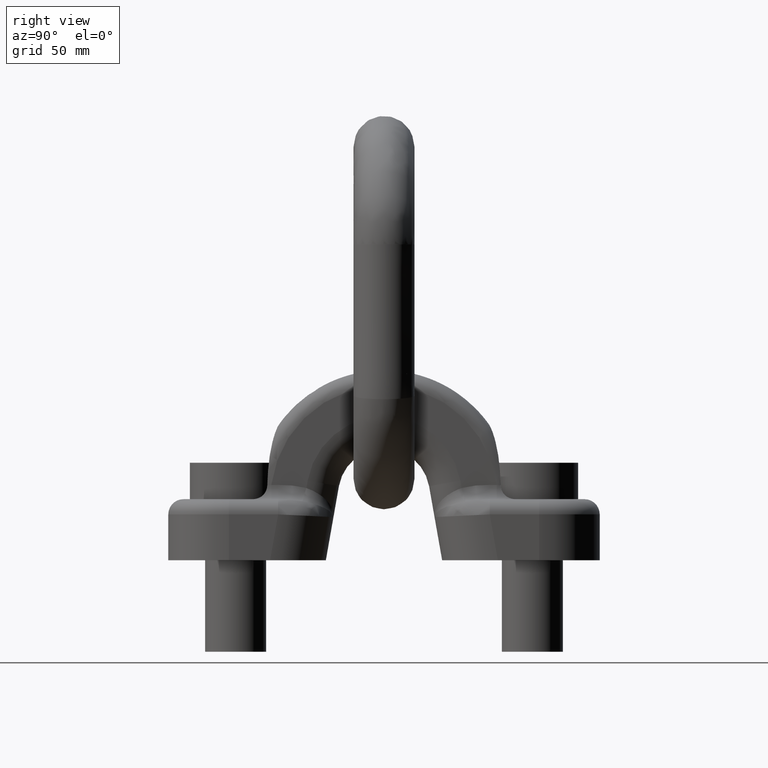
[diagram: clean part render]
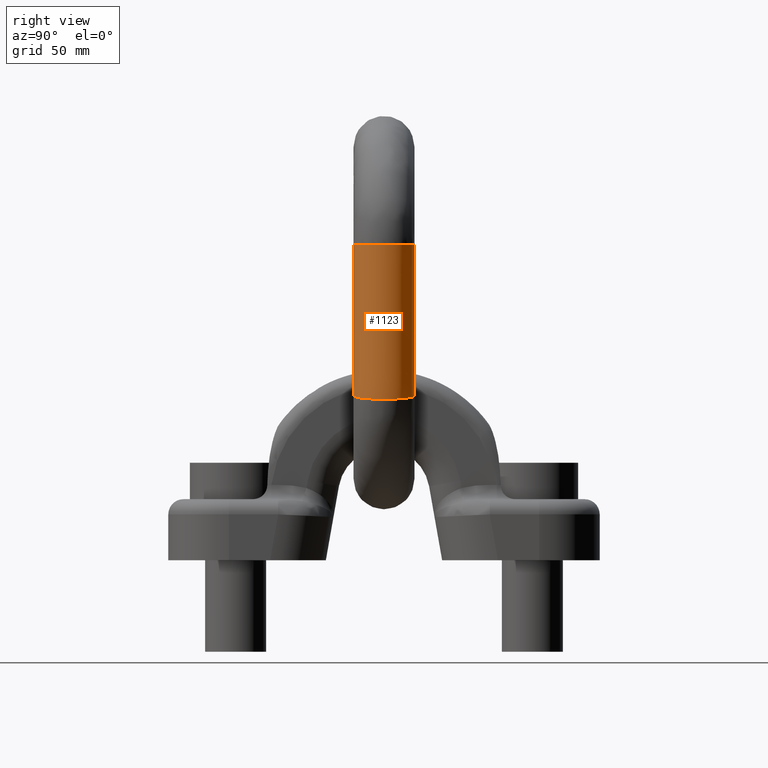
[diagram: same view with one face highlighted and labeled with its STEP entity id]
A machine part, right view. The second image highlights one B-rep face of the part: STEP entity #1123.
In plain terms, the highlighted face is a freeform B-spline surface patch.
Its self-contained STEP definition (entity closure, byte-faithful):
#31=(
BOUNDED_CURVE()
B_SPLINE_CURVE(4,(#6963,#6964,#6965,#6966,#6967,#6968,#6969,#6970,#6971,
#6972,#6973,#6974,#6975,#6976),.UNSPECIFIED.,.T.,.F.)
B_SPLINE_CURVE_WITH_KNOTS((2,3,3,3,3,3,2),(-0.25,0.,0.25,0.5,0.75,1.,1.25),
 .UNSPECIFIED.)
CURVE()
GEOMETRIC_REPRESENTATION_ITEM()
RATIONAL_B_SPLINE_CURVE((1.0166117137858,1.0166117137858,0.958470715535492,
1.0166117137858,1.0166117137858,0.958470715535492,1.0166117137858,1.0166117137858,
0.958470715535492,1.0166117137858,1.0166117137858,0.958470715535492,1.0166117137858,
1.0166117137858))
REPRESENTATION_ITEM('')
);
#32=(
BOUNDED_CURVE()
B_SPLINE_CURVE(4,(#6978,#6979,#6980,#6981,#6982,#6983,#6984,#6985,#6986,
#6987,#6988,#6989,#6990,#6991),.UNSPECIFIED.,.T.,.F.)
B_SPLINE_CURVE_WITH_KNOTS((2,3,3,3,3,3,2),(-0.25,0.,0.25,0.5,0.75,1.,1.25),
 .UNSPECIFIED.)
CURVE()
GEOMETRIC_REPRESENTATION_ITEM()
RATIONAL_B_SPLINE_CURVE((1.0166117137858,1.0166117137858,0.958470715535493,
1.0166117137858,1.0166117137858,0.958470715535493,1.0166117137858,1.0166117137858,
0.958470715535493,1.0166117137858,1.0166117137858,0.958470715535493,1.0166117137858,
1.0166117137858))
REPRESENTATION_ITEM('')
);
#815=(
BOUNDED_SURFACE()
B_SPLINE_SURFACE(4,3,((#6993,#6994,#6995,#6996,#6997,#6998,#6999,#7000,
#7001,#7002,#7003),(#7004,#7005,#7006,#7007,#7008,#7009,#7010,#7011,#7012,
#7013,#7014),(#7015,#7016,#7017,#7018,#7019,#7020,#7021,#7022,#7023,#7024,
#7025),(#7026,#7027,#7028,#7029,#7030,#7031,#7032,#7033,#7034,#7035,#7036),
(#7037,#7038,#7039,#7040,#7041,#7042,#7043,#7044,#7045,#7046,#7047),(#7048,
#7049,#7050,#7051,#7052,#7053,#7054,#7055,#7056,#7057,#7058),(#7059,#7060,
#7061,#7062,#7063,#7064,#7065,#7066,#7067,#7068,#7069),(#7070,#7071,#7072,
#7073,#7074,#7075,#7076,#7077,#7078,#7079,#7080),(#7081,#7082,#7083,#7084,
#7085,#7086,#7087,#7088,#7089,#7090,#7091),(#7092,#7093,#7094,#7095,#7096,
#7097,#7098,#7099,#7100,#7101,#7102),(#7103,#7104,#7105,#7106,#7107,#7108,
#7109,#7110,#7111,#7112,#7113),(#7114,#7115,#7116,#7117,#7118,#7119,#7120,
#7121,#7122,#7123,#7124),(#7125,#7126,#7127,#7128,#7129,#7130,#7131,#7132,
#7133,#7134,#7135),(#7136,#7137,#7138,#7139,#7140,#7141,#7142,#7143,#7144,
#7145,#7146)),.UNSPECIFIED.,.T.,.F.,.F.)
B_SPLINE_SURFACE_WITH_KNOTS((2,3,3,3,3,3,2),(4,1,1,1,1,1,1,1,4),(-0.25,
0.,0.25,0.5,0.75,1.,1.25),(0.,0.0326051221040387,0.0813826988112368,0.130401364535786,
0.178114624765832,0.449210360547827,0.801555512534497,0.957539094905328,
1.),.UNSPECIFIED.)
GEOMETRIC_REPRESENTATION_ITEM()
RATIONAL_B_SPLINE_SURFACE(((1.0166117137858,1.0166117137858,1.0166117137858,
1.0166117137858,1.0166117137858,1.0166117137858,1.0166117137858,1.0166117137858,
1.0166117137858,1.0166117137858,1.0166117137858),(1.0166117137858,1.0166117137858,
1.0166117137858,1.0166117137858,1.0166117137858,1.0166117137858,1.0166117137858,
1.0166117137858,1.0166117137858,1.0166117137858,1.0166117137858),(0.958470715535492,
0.958470715535492,0.958470715535493,0.958470715535493,0.958470715535492,
0.958470715535494,0.95847071553549,0.958470715535495,0.95847071553549,0.958470715535494,
0.958470715535493),(1.0166117137858,1.0166117137858,1.0166117137858,1.0166117137858,
1.0166117137858,1.0166117137858,1.0166117137858,1.0166117137858,1.0166117137858,
1.0166117137858,1.0166117137858),(1.0166117137858,1.0166117137858,1.0166117137858,
1.0166117137858,1.0166117137858,1.0166117137858,1.0166117137858,1.0166117137858,
1.0166117137858,1.0166117137858,1.0166117137858),(0.958470715535492,0.958470715535492,
0.958470715535493,0.958470715535493,0.958470715535492,0.958470715535494,
0.95847071553549,0.958470715535495,0.95847071553549,0.958470715535494,0.958470715535493),
(1.0166117137858,1.0166117137858,1.0166117137858,1.0166117137858,1.0166117137858,
1.0166117137858,1.0166117137858,1.0166117137858,1.0166117137858,1.0166117137858,
1.0166117137858),(1.0166117137858,1.0166117137858,1.0166117137858,1.0166117137858,
1.0166117137858,1.0166117137858,1.0166117137858,1.0166117137858,1.0166117137858,
1.0166117137858,1.0166117137858),(0.958470715535492,0.958470715535492,0.958470715535493,
0.958470715535493,0.958470715535492,0.958470715535494,0.95847071553549,
0.958470715535495,0.95847071553549,0.958470715535494,0.958470715535493),
(1.0166117137858,1.0166117137858,1.0166117137858,1.0166117137858,1.0166117137858,
1.0166117137858,1.0166117137858,1.0166117137858,1.0166117137858,1.0166117137858,
1.0166117137858),(1.0166117137858,1.0166117137858,1.0166117137858,1.0166117137858,
1.0166117137858,1.0166117137858,1.0166117137858,1.0166117137858,1.0166117137858,
1.0166117137858,1.0166117137858),(0.958470715535492,0.958470715535492,0.958470715535493,
0.958470715535493,0.958470715535492,0.958470715535494,0.95847071553549,
0.958470715535495,0.95847071553549,0.958470715535494,0.958470715535493),
(1.0166117137858,1.0166117137858,1.0166117137858,1.0166117137858,1.0166117137858,
1.0166117137858,1.0166117137858,1.0166117137858,1.0166117137858,1.0166117137858,
1.0166117137858),(1.0166117137858,1.0166117137858,1.0166117137858,1.0166117137858,
1.0166117137858,1.0166117137858,1.0166117137858,1.0166117137858,1.0166117137858,
1.0166117137858,1.0166117137858)))
REPRESENTATION_ITEM('')
SURFACE()
);
#1123=ADVANCED_FACE('',(#1502,#1503),#815,.F.);
#1502=FACE_BOUND('',#1691,.T.);
#1503=FACE_BOUND('',#1692,.T.);
#1691=EDGE_LOOP('',(#2797));
#1692=EDGE_LOOP('',(#2798));
#2797=ORIENTED_EDGE('',*,*,#3478,.T.);
#2798=ORIENTED_EDGE('',*,*,#3479,.F.);
#3074=VERTEX_POINT('',#6977);
#3075=VERTEX_POINT('',#6992);
#3478=EDGE_CURVE('',#3074,#3074,#31,.T.);
#3479=EDGE_CURVE('',#3075,#3075,#32,.T.);
#6963=CARTESIAN_POINT('',(61.4490855431746,18.,96.3191937444173));
#6964=CARTESIAN_POINT('',(48.8065201706247,18.,97.8162147740503));
#6965=CARTESIAN_POINT('',(40.4091567869886,14.8180194846605,98.8105564450903));
#6966=CARTESIAN_POINT('',(37.2485154438511,6.36396103067893,99.1848117024986));
#6967=CARTESIAN_POINT('',(37.2485154438511,-6.36396103067893,99.1848117024986));
#6968=CARTESIAN_POINT('',(40.4091567869886,-14.8180194846605,98.8105564450903));
#6969=CARTESIAN_POINT('',(48.8065201706247,-18.,97.8162147740503));
#6970=CARTESIAN_POINT('',(61.4490855431746,-18.,96.3191937444173));
#6971=CARTESIAN_POINT('',(69.8464489268107,-14.8180194846605,95.3248520733773));
#6972=CARTESIAN_POINT('',(73.0070902699482,-6.36396103067893,94.9505968159691));
#6973=CARTESIAN_POINT('',(73.0070902699482,6.36396103067893,94.9505968159691));
#6974=CARTESIAN_POINT('',(69.8464489268107,14.8180194846605,95.3248520733773));
#6975=CARTESIAN_POINT('',(61.4490855431746,18.,96.3191937444173));
#6976=CARTESIAN_POINT('',(48.8065201706247,18.,97.8162147740503));
#6977=CARTESIAN_POINT('',(55.1278028568996,18.,97.0677042592338));
#6978=CARTESIAN_POINT('',(61.8639804776059,18.,186.297450421944));
#6979=CARTESIAN_POINT('',(49.1360544152276,18.,186.297227261218));
#6980=CARTESIAN_POINT('',(40.6819933037139,14.8180194846605,186.297079034837));
#6981=CARTESIAN_POINT('',(37.5000117881194,6.36396103067893,186.297023244656));
#6982=CARTESIAN_POINT('',(37.5000117881194,-6.36396103067893,186.297023244656));
#6983=CARTESIAN_POINT('',(40.6819933037139,-14.8180194846605,186.297079034837));
#6984=CARTESIAN_POINT('',(49.1360544152276,-18.,186.297227261218));
#6985=CARTESIAN_POINT('',(61.8639804776059,-18.,186.297450421944));
#6986=CARTESIAN_POINT('',(70.3180415891194,-14.8180194846605,186.297598648325));
#6987=CARTESIAN_POINT('',(73.5000231047141,-6.36396103067893,186.297654438506));
#6988=CARTESIAN_POINT('',(73.5000231047141,6.36396103067893,186.297654438506));
#6989=CARTESIAN_POINT('',(70.3180415891194,14.8180194846605,186.297598648325));
#6990=CARTESIAN_POINT('',(61.8639804776059,18.,186.297450421944));
#6991=CARTESIAN_POINT('',(49.1360544152276,18.,186.297227261218));
#6992=CARTESIAN_POINT('',(55.5000174464167,18.,186.297338841581));
#6993=CARTESIAN_POINT('',(48.8065201706247,18.,97.8162147740503));
#6994=CARTESIAN_POINT('',(48.8933348685172,18.,98.5544357006451));
#6995=CARTESIAN_POINT('',(49.068995159645,18.,100.411187348365));
#6996=CARTESIAN_POINT('',(49.1560009614122,18.,103.365866653028));
#6997=CARTESIAN_POINT('',(49.1330013535915,18.,107.515725846063));
#6998=CARTESIAN_POINT('',(49.1377821421857,18.,117.907630960323));
#6999=CARTESIAN_POINT('',(49.1347722256213,18.,138.35731963573));
#7000=CARTESIAN_POINT('',(49.1366674808383,18.,162.361358664139));
#7001=CARTESIAN_POINT('',(49.135740898045,18.,179.166853963492));
#7002=CARTESIAN_POINT('',(49.1362036922673,18.,185.04782744506));
#7003=CARTESIAN_POINT('',(49.1360544152276,18.,186.297227261218));
#7004=CARTESIAN_POINT('',(61.4490855431746,18.,96.3191937444173));
#7005=CARTESIAN_POINT('',(61.5583882301629,18.,97.2472158563065));
#7006=CARTESIAN_POINT('',(61.7795505711435,18.,99.6023917491442));
#7007=CARTESIAN_POINT('',(61.8890938644751,18.,103.602168817627));
#7008=CARTESIAN_POINT('',(61.8601365681243,18.,107.480345316246));
#7009=CARTESIAN_POINT('',(61.8661557451988,18.,117.927941856863));
#7010=CARTESIAN_POINT('',(61.8623661568443,18.,138.342420624551));
#7011=CARTESIAN_POINT('',(61.8647523482707,18.,162.368935753659));
#7012=CARTESIAN_POINT('',(61.8635857487025,18.,179.163118442515));
#7013=CARTESIAN_POINT('',(61.8641684225269,18.,185.050106955286));
#7014=CARTESIAN_POINT('',(61.8639804776059,18.,186.297450421944));
#7015=CARTESIAN_POINT('',(69.8464489268107,14.8180194846605,95.3248520733773));
#7016=CARTESIAN_POINT('',(69.970688441147,14.8180194846605,96.3789427066935));
#7017=CARTESIAN_POINT('',(70.2220738607556,14.8180194846605,99.0651787429541));
#7018=CARTESIAN_POINT('',(70.3465868616461,14.8180194846605,103.759123920172));
#7019=CARTESIAN_POINT('',(70.3136723877733,14.8180194846606,107.456845088498));
#7020=CARTESIAN_POINT('',(70.3205141192715,14.8180194846605,117.941432629808));
#7021=CARTESIAN_POINT('',(70.3162066623406,14.8180194846606,138.332524499261));
#7022=CARTESIAN_POINT('',(70.3189189402543,14.8180194846605,162.37396855928));
#7023=CARTESIAN_POINT('',(70.3175929182902,14.8180194846606,179.16063725882));
#7024=CARTESIAN_POINT('',(70.3182552177716,14.8180194846605,185.051621036894));
#7025=CARTESIAN_POINT('',(70.3180415891194,14.8180194846605,186.297598648325));
#7026=CARTESIAN_POINT('',(73.0070902699482,6.36396103067892,94.950596815969));
#7027=CARTESIAN_POINT('',(73.1369517815585,6.36396103067892,96.0521377456088));
#7028=CARTESIAN_POINT('',(73.3997127136303,6.36396103067893,98.862979843149));
#7029=CARTESIAN_POINT('',(73.5298600874118,6.36396103067893,103.818199461322));
#7030=CARTESIAN_POINT('',(73.4954561914064,6.36396103067893,107.447999956044));
#7031=CARTESIAN_POINT('',(73.5026075200249,6.36396103067892,117.946510353943));
#7032=CARTESIAN_POINT('',(73.4981051451461,6.36396103067894,138.328799746466));
#7033=CARTESIAN_POINT('',(73.5009401571128,6.36396103067892,162.375862831661));
#7034=CARTESIAN_POINT('',(73.4995541309544,6.36396103067894,179.159703378575));
#7035=CARTESIAN_POINT('',(73.5002464003367,6.36396103067893,185.052190914451));
#7036=CARTESIAN_POINT('',(73.5000231047141,6.36396103067893,186.297654438506));
#7037=CARTESIAN_POINT('',(73.0070902699482,-6.36396103067893,94.950596815969));
#7038=CARTESIAN_POINT('',(73.1369517815585,-6.36396103067893,96.0521377456088));
#7039=CARTESIAN_POINT('',(73.3997127136303,-6.36396103067893,98.862979843149));
#7040=CARTESIAN_POINT('',(73.5298600874118,-6.36396103067892,103.818199461322));
#7041=CARTESIAN_POINT('',(73.4954561914064,-6.36396103067893,107.447999956044));
#7042=CARTESIAN_POINT('',(73.5026075200249,-6.36396103067894,117.946510353943));
#7043=CARTESIAN_POINT('',(73.4981051451461,-6.36396103067891,138.328799746466));
#7044=CARTESIAN_POINT('',(73.5009401571128,-6.36396103067895,162.375862831661));
#7045=CARTESIAN_POINT('',(73.4995541309544,-6.36396103067891,179.159703378575));
#7046=CARTESIAN_POINT('',(73.5002464003367,-6.36396103067894,185.052190914451));
#7047=CARTESIAN_POINT('',(73.5000231047141,-6.36396103067893,186.297654438506));
#7048=CARTESIAN_POINT('',(69.8464489268106,-14.8180194846605,95.3248520733773));
#7049=CARTESIAN_POINT('',(69.9706884411469,-14.8180194846605,96.3789427066935));
#7050=CARTESIAN_POINT('',(70.2220738607555,-14.8180194846605,99.0651787429541));
#7051=CARTESIAN_POINT('',(70.3465868616461,-14.8180194846605,103.759123920172));
#7052=CARTESIAN_POINT('',(70.3136723877732,-14.8180194846606,107.456845088498));
#7053=CARTESIAN_POINT('',(70.3205141192715,-14.8180194846605,117.941432629808));
#7054=CARTESIAN_POINT('',(70.3162066623406,-14.8180194846606,138.332524499261));
#7055=CARTESIAN_POINT('',(70.3189189402543,-14.8180194846605,162.37396855928));
#7056=CARTESIAN_POINT('',(70.3175929182903,-14.8180194846606,179.16063725882));
#7057=CARTESIAN_POINT('',(70.3182552177716,-14.8180194846605,185.051621036894));
#7058=CARTESIAN_POINT('',(70.3180415891194,-14.8180194846605,186.297598648325));
#7059=CARTESIAN_POINT('',(61.4490855431746,-18.,96.3191937444173));
#7060=CARTESIAN_POINT('',(61.5583882301629,-18.,97.2472158563065));
#7061=CARTESIAN_POINT('',(61.7795505711435,-18.,99.6023917491442));
#7062=CARTESIAN_POINT('',(61.8890938644751,-18.,103.602168817627));
#7063=CARTESIAN_POINT('',(61.8601365681243,-18.,107.480345316246));
#7064=CARTESIAN_POINT('',(61.8661557451988,-18.,117.927941856863));
#7065=CARTESIAN_POINT('',(61.8623661568443,-18.,138.342420624551));
#7066=CARTESIAN_POINT('',(61.8647523482707,-18.,162.368935753659));
#7067=CARTESIAN_POINT('',(61.8635857487025,-18.,179.163118442515));
#7068=CARTESIAN_POINT('',(61.8641684225269,-18.,185.050106955286));
#7069=CARTESIAN_POINT('',(61.8639804776059,-18.,186.297450421944));
#7070=CARTESIAN_POINT('',(48.8065201706247,-18.,97.8162147740503));
#7071=CARTESIAN_POINT('',(48.8933348685172,-18.,98.5544357006451));
#7072=CARTESIAN_POINT('',(49.068995159645,-18.,100.411187348365));
#7073=CARTESIAN_POINT('',(49.1560009614122,-18.,103.365866653028));
#7074=CARTESIAN_POINT('',(49.1330013535915,-18.,107.515725846063));
#7075=CARTESIAN_POINT('',(49.1377821421857,-18.,117.907630960323));
#7076=CARTESIAN_POINT('',(49.1347722256213,-18.,138.35731963573));
#7077=CARTESIAN_POINT('',(49.1366674808383,-18.,162.361358664139));
#7078=CARTESIAN_POINT('',(49.135740898045,-18.,179.166853963492));
#7079=CARTESIAN_POINT('',(49.1362036922673,-18.,185.04782744506));
#7080=CARTESIAN_POINT('',(49.1360544152276,-18.,186.297227261218));
#7081=CARTESIAN_POINT('',(40.4091567869885,-14.8180194846605,98.8105564450902));
#7082=CARTESIAN_POINT('',(40.4810346575331,-14.8180194846605,99.4227088502581));
#7083=CARTESIAN_POINT('',(40.6264718700329,-14.8180194846605,100.948400354555));
#7084=CARTESIAN_POINT('',(40.6985079642411,-14.8180194846605,103.208911550483));
#7085=CARTESIAN_POINT('',(40.6794655339426,-14.8180194846606,107.539226073812));
#7086=CARTESIAN_POINT('',(40.6834237681128,-14.8180194846605,117.894140187378));
#7087=CARTESIAN_POINT('',(40.6809317201254,-14.8180194846606,138.367215761021));
#7088=CARTESIAN_POINT('',(40.6825008888541,-14.8180194846605,162.356325858515));
#7089=CARTESIAN_POINT('',(40.6817337284576,-14.8180194846606,179.169335147189));
#7090=CARTESIAN_POINT('',(40.6821168970223,-14.8180194846605,185.046313363452));
#7091=CARTESIAN_POINT('',(40.6819933037139,-14.8180194846605,186.297079034837));
#7092=CARTESIAN_POINT('',(37.2485154438511,-6.36396103067893,99.1848117024986));
#7093=CARTESIAN_POINT('',(37.3147713171217,-6.36396103067893,99.7495138113428));
#7094=CARTESIAN_POINT('',(37.4488330171583,-6.36396103067893,101.15059925436));
#7095=CARTESIAN_POINT('',(37.5152347384754,-6.36396103067893,103.149836009333));
#7096=CARTESIAN_POINT('',(37.4976817303094,-6.36396103067893,107.548071206266));
#7097=CARTESIAN_POINT('',(37.5013303673597,-6.36396103067893,117.889062463243));
#7098=CARTESIAN_POINT('',(37.4990332373193,-6.36396103067893,138.370940513815));
#7099=CARTESIAN_POINT('',(37.5004796719964,-6.36396103067894,162.354431586136));
#7100=CARTESIAN_POINT('',(37.499772515793,-6.36396103067893,179.170269027432));
#7101=CARTESIAN_POINT('',(37.5001257144575,-6.36396103067894,185.045743485896));
#7102=CARTESIAN_POINT('',(37.5000117881194,-6.36396103067893,186.297023244656));
#7103=CARTESIAN_POINT('',(37.2485154438511,6.36396103067893,99.1848117024986));
#7104=CARTESIAN_POINT('',(37.3147713171217,6.36396103067893,99.7495138113428));
#7105=CARTESIAN_POINT('',(37.4488330171583,6.36396103067893,101.15059925436));
#7106=CARTESIAN_POINT('',(37.5152347384754,6.36396103067893,103.149836009333));
#7107=CARTESIAN_POINT('',(37.4976817303094,6.36396103067892,107.548071206266));
#7108=CARTESIAN_POINT('',(37.5013303673597,6.36396103067894,117.889062463243));
#7109=CARTESIAN_POINT('',(37.4990332373193,6.3639610306789,138.370940513815));
#7110=CARTESIAN_POINT('',(37.5004796719964,6.36396103067895,162.354431586136));
#7111=CARTESIAN_POINT('',(37.499772515793,6.36396103067891,179.170269027432));
#7112=CARTESIAN_POINT('',(37.5001257144575,6.36396103067893,185.045743485896));
#7113=CARTESIAN_POINT('',(37.5000117881194,6.36396103067893,186.297023244656));
#7114=CARTESIAN_POINT('',(40.4091567869886,14.8180194846605,98.8105564450902));
#7115=CARTESIAN_POINT('',(40.4810346575331,14.8180194846605,99.4227088502581));
#7116=CARTESIAN_POINT('',(40.6264718700329,14.8180194846605,100.948400354555));
#7117=CARTESIAN_POINT('',(40.6985079642411,14.8180194846605,103.208911550483));
#7118=CARTESIAN_POINT('',(40.6794655339426,14.8180194846606,107.539226073812));
#7119=CARTESIAN_POINT('',(40.6834237681128,14.8180194846605,117.894140187377));
#7120=CARTESIAN_POINT('',(40.6809317201254,14.8180194846606,138.367215761021));
#7121=CARTESIAN_POINT('',(40.6825008888541,14.8180194846604,162.356325858515));
#7122=CARTESIAN_POINT('',(40.6817337284576,14.8180194846606,179.169335147189));
#7123=CARTESIAN_POINT('',(40.6821168970223,14.8180194846605,185.046313363452));
#7124=CARTESIAN_POINT('',(40.6819933037139,14.8180194846605,186.297079034837));
#7125=CARTESIAN_POINT('',(48.8065201706247,18.,97.8162147740503));
#7126=CARTESIAN_POINT('',(48.8933348685172,18.,98.5544357006451));
#7127=CARTESIAN_POINT('',(49.068995159645,18.,100.411187348365));
#7128=CARTESIAN_POINT('',(49.1560009614122,18.,103.365866653028));
#7129=CARTESIAN_POINT('',(49.1330013535915,18.,107.515725846063));
#7130=CARTESIAN_POINT('',(49.1377821421857,18.,117.907630960323));
#7131=CARTESIAN_POINT('',(49.1347722256213,18.,138.35731963573));
#7132=CARTESIAN_POINT('',(49.1366674808383,18.,162.361358664139));
#7133=CARTESIAN_POINT('',(49.135740898045,18.,179.166853963492));
#7134=CARTESIAN_POINT('',(49.1362036922673,18.,185.04782744506));
#7135=CARTESIAN_POINT('',(49.1360544152276,18.,186.297227261218));
#7136=CARTESIAN_POINT('',(61.4490855431746,18.,96.3191937444173));
#7137=CARTESIAN_POINT('',(61.5583882301629,18.,97.2472158563065));
#7138=CARTESIAN_POINT('',(61.7795505711435,18.,99.6023917491442));
#7139=CARTESIAN_POINT('',(61.8890938644751,18.,103.602168817627));
#7140=CARTESIAN_POINT('',(61.8601365681243,18.,107.480345316246));
#7141=CARTESIAN_POINT('',(61.8661557451988,18.,117.927941856863));
#7142=CARTESIAN_POINT('',(61.8623661568443,18.,138.342420624551));
#7143=CARTESIAN_POINT('',(61.8647523482707,18.,162.368935753659));
#7144=CARTESIAN_POINT('',(61.8635857487025,18.,179.163118442515));
#7145=CARTESIAN_POINT('',(61.8641684225269,18.,185.050106955286));
#7146=CARTESIAN_POINT('',(61.8639804776059,18.,186.297450421944));